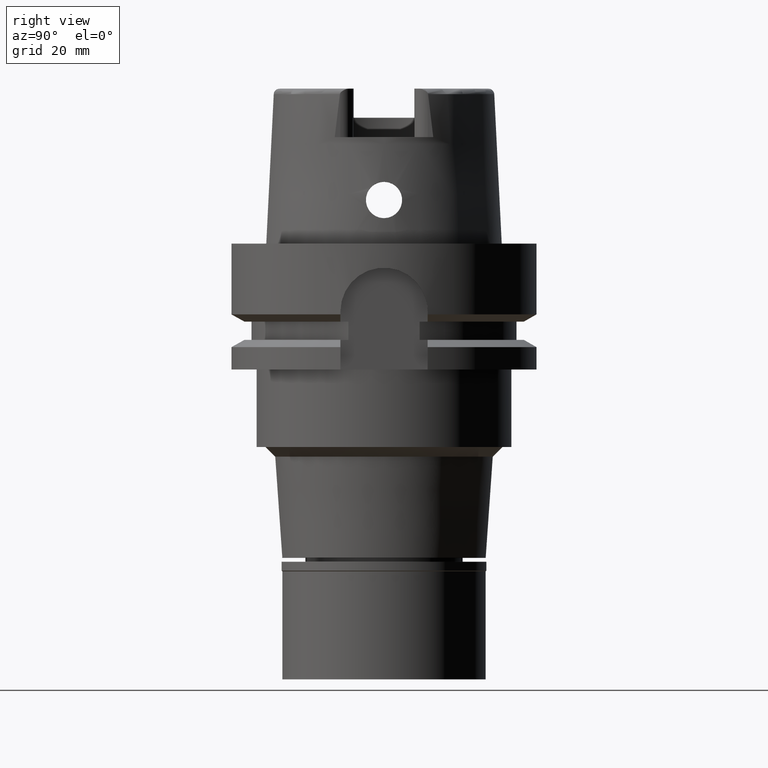
[diagram: clean part render]
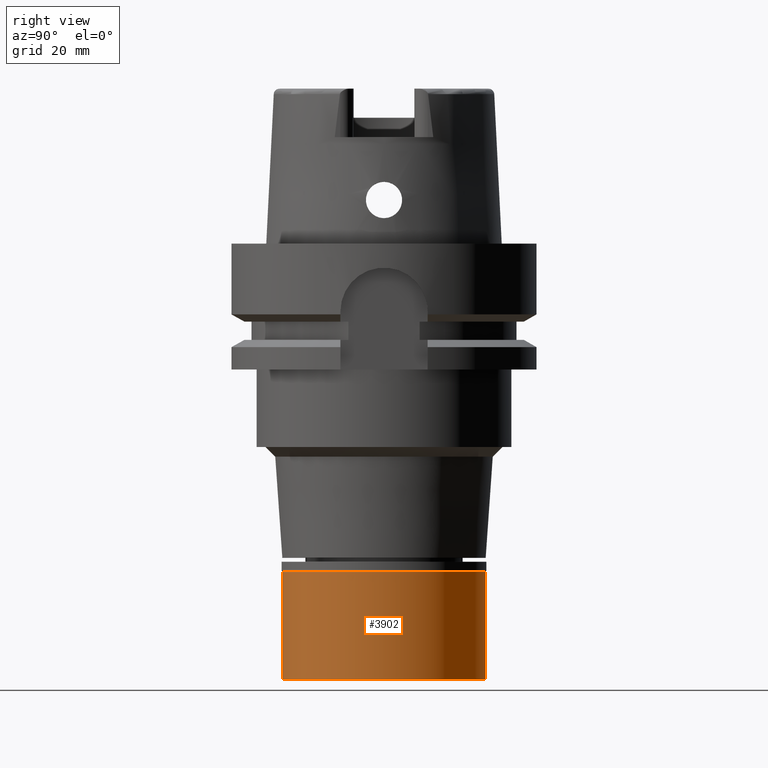
[diagram: same view with one face highlighted and labeled with its STEP entity id]
A machine part, right view. The second image highlights one B-rep face of the part: STEP entity #3902.
In plain terms, the highlighted cylindrical surface (partial cylindrical patch) has radius 21 mm, axis along (0, 0, -1).
Its self-contained STEP definition (entity closure, byte-faithful):
#376 = DIRECTION ( 'NONE',  ( 0.0000000000000000000, 1.000000000000000000, 0.0000000000000000000 ) ) ;
#382 = VERTEX_POINT ( 'NONE', #474 ) ;
#459 = ORIENTED_EDGE ( 'NONE', *, *, #3173, .F. ) ;
#474 = CARTESIAN_POINT ( 'NONE',  ( 0.0000000000000000000, 21.00000000000000000, -2.000000000000000000 ) ) ;
#768 = AXIS2_PLACEMENT_3D ( 'NONE', #4041, #1914, #3554 ) ;
#796 = DIRECTION ( 'NONE',  ( 0.0000000000000000000, 0.0000000000000000000, -1.000000000000000000 ) ) ;
#1617 = DIRECTION ( 'NONE',  ( 0.0000000000000000000, -1.000000000000000000, 0.0000000000000000000 ) ) ;
#1665 = CIRCLE ( 'NONE', #5013, 21.00000000000000000 ) ;
#1754 = EDGE_LOOP ( 'NONE', ( #5365, #2086, #2798, #459 ) ) ;
#1855 = VECTOR ( 'NONE', #796, 1000.000000000000000 ) ;
#1914 = DIRECTION ( 'NONE',  ( 0.0000000000000000000, 0.0000000000000000000, 1.000000000000000000 ) ) ;
#2086 = ORIENTED_EDGE ( 'NONE', *, *, #5351, .T. ) ;
#2502 = CYLINDRICAL_SURFACE ( 'NONE', #3663, 21.00000000000000000 ) ;
#2584 = FACE_OUTER_BOUND ( 'NONE', #1754, .T. ) ;
#2611 = CARTESIAN_POINT ( 'NONE',  ( 0.0000000000000000000, 0.0000000000000000000, -2.000000000000000000 ) ) ;
#2778 = VECTOR ( 'NONE', #5027, 1000.000000000000000 ) ;
#2798 = ORIENTED_EDGE ( 'NONE', *, *, #4570, .T. ) ;
#2871 = CARTESIAN_POINT ( 'NONE',  ( 0.0000000000000000000, -21.00000000000000000, -2.000000000000000000 ) ) ;
#2878 = CARTESIAN_POINT ( 'NONE',  ( 0.0000000000000000000, 21.00000000000000000, -2.000000000000000000 ) ) ;
#2894 = VERTEX_POINT ( 'NONE', #2871 ) ;
#3173 = EDGE_CURVE ( 'NONE', #382, #4942, #3600, .T. ) ;
#3208 = CIRCLE ( 'NONE', #768, 21.00000000000000000 ) ;
#3365 = CARTESIAN_POINT ( 'NONE',  ( 0.0000000000000000000, 0.0000000000000000000, 0.0000000000000000000 ) ) ;
#3554 = DIRECTION ( 'NONE',  ( 0.0000000000000000000, -1.000000000000000000, 0.0000000000000000000 ) ) ;
#3600 = LINE ( 'NONE', #2878, #2778 ) ;
#3663 = AXIS2_PLACEMENT_3D ( 'NONE', #3365, #4711, #1617 ) ;
#3803 = CARTESIAN_POINT ( 'NONE',  ( 0.0000000000000000000, 21.00000000000000000, -24.29999999999999716 ) ) ;
#3811 = VERTEX_POINT ( 'NONE', #4221 ) ;
#3902 = ADVANCED_FACE ( 'NONE', ( #2584 ), #2502, .T. ) ;
#4041 = CARTESIAN_POINT ( 'NONE',  ( 0.0000000000000000000, 0.0000000000000000000, -24.29999999999999716 ) ) ;
#4221 = CARTESIAN_POINT ( 'NONE',  ( 0.0000000000000000000, -21.00000000000000000, -24.29999999999999716 ) ) ;
#4570 = EDGE_CURVE ( 'NONE', #3811, #4942, #3208, .T. ) ;
#4659 = LINE ( 'NONE', #5179, #1855 ) ;
#4688 = DIRECTION ( 'NONE',  ( 0.0000000000000000000, 0.0000000000000000000, -1.000000000000000000 ) ) ;
#4711 = DIRECTION ( 'NONE',  ( 0.0000000000000000000, 0.0000000000000000000, -1.000000000000000000 ) ) ;
#4942 = VERTEX_POINT ( 'NONE', #3803 ) ;
#5005 = EDGE_CURVE ( 'NONE', #382, #2894, #1665, .T. ) ;
#5013 = AXIS2_PLACEMENT_3D ( 'NONE', #2611, #4688, #376 ) ;
#5027 = DIRECTION ( 'NONE',  ( 0.0000000000000000000, 0.0000000000000000000, -1.000000000000000000 ) ) ;
#5179 = CARTESIAN_POINT ( 'NONE',  ( 0.0000000000000000000, -21.00000000000000000, -2.000000000000000000 ) ) ;
#5351 = EDGE_CURVE ( 'NONE', #2894, #3811, #4659, .T. ) ;
#5365 = ORIENTED_EDGE ( 'NONE', *, *, #5005, .T. ) ;